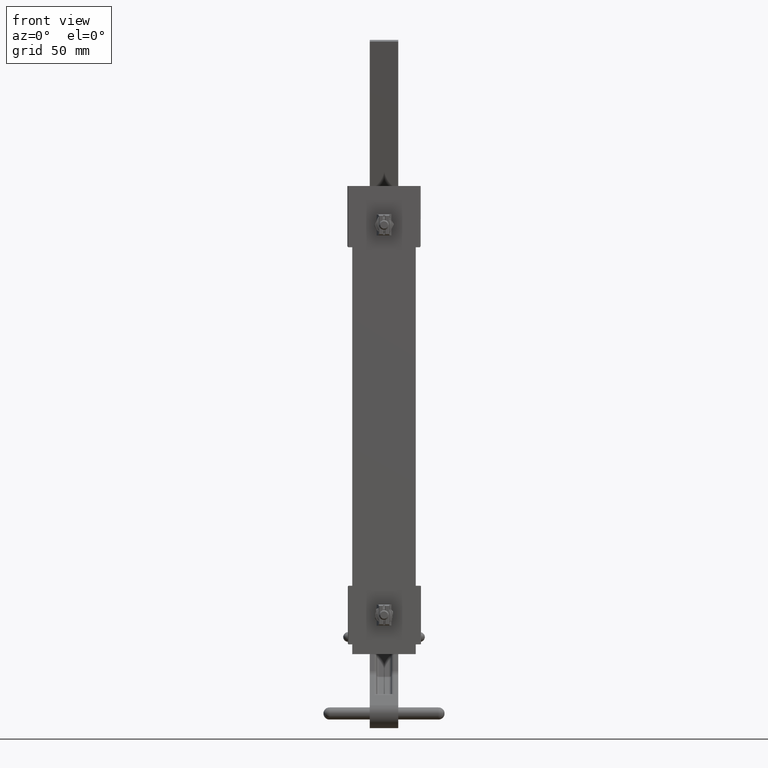
[diagram: clean part render]
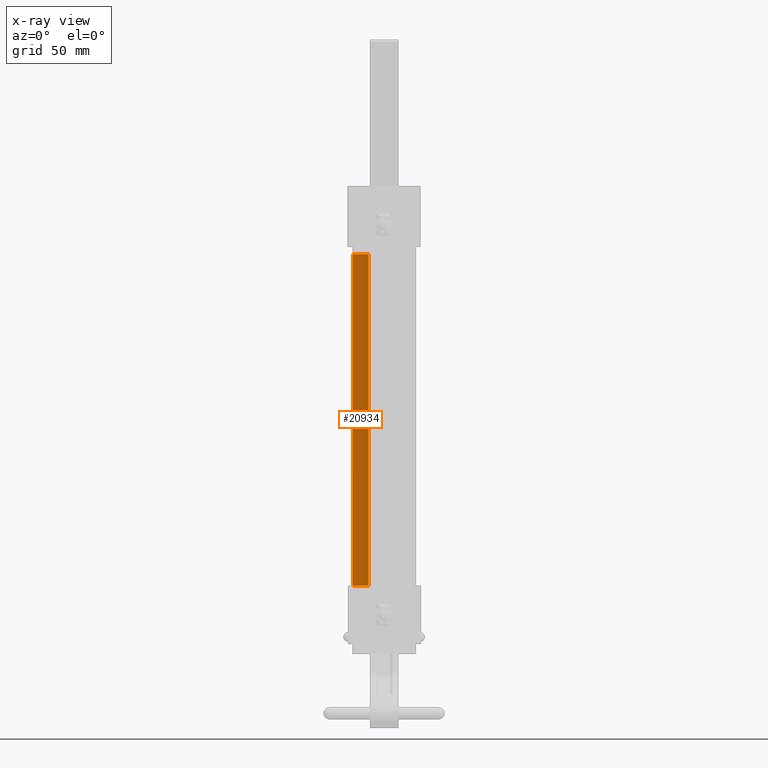
[diagram: x-ray — body ghosted, one internal face saturated and labeled with its STEP entity id]
A machine part, front view, then the same camera in x-ray: the body is ghosted and one INTERNAL B-rep face — a face not visible from any outside direction — is saturated and labeled: STEP entity #20934.
In plain terms, the highlighted planar face has unit normal (-0, -1, 0).
Its self-contained STEP definition (entity closure, byte-faithful):
#111 = EDGE_CURVE ( 'NONE', #20082, #3432, #18155, .T. ) ;
#798 = VECTOR ( 'NONE', #14236, 39.37007874015748100 ) ;
#2136 = LINE ( 'NONE', #5496, #37944 ) ;
#3432 = VERTEX_POINT ( 'NONE', #9697 ) ;
#5496 = CARTESIAN_POINT ( 'NONE',  ( -0.3940000000000000700, -0.1880000000000000800, 4.250000000000000000 ) ) ;
#7037 = AXIS2_PLACEMENT_3D ( 'NONE', #16523, #40768, #20037 ) ;
#7241 = CARTESIAN_POINT ( 'NONE',  ( -0.8000000000000000400, -0.1880000000000000600, 4.250000000000000000 ) ) ;
#8568 = ORIENTED_EDGE ( 'NONE', *, *, #28627, .T. ) ;
#9136 = DIRECTION ( 'NONE',  ( -0.0000000000000000000, -0.0000000000000000000, -1.000000000000000000 ) ) ;
#9535 = PLANE ( 'NONE',  #7037 ) ;
#9697 = CARTESIAN_POINT ( 'NONE',  ( -0.8000000000000000400, -0.1880000000000000600, -4.250000000000000000 ) ) ;
#10989 = CARTESIAN_POINT ( 'NONE',  ( -0.8000000000000000400, -0.1880000000000000600, 4.250000000000000000 ) ) ;
#11045 = VERTEX_POINT ( 'NONE', #28980 ) ;
#11272 = ORIENTED_EDGE ( 'NONE', *, *, #31563, .F. ) ;
#12323 = VECTOR ( 'NONE', #31183, 39.37007874015748100 ) ;
#14236 = DIRECTION ( 'NONE',  ( -0.0000000000000000000, -0.0000000000000000000, -1.000000000000000000 ) ) ;
#16523 = CARTESIAN_POINT ( 'NONE',  ( -0.8000000000000000400, -0.1880000000000000600, 4.250000000000000000 ) ) ;
#17146 = CARTESIAN_POINT ( 'NONE',  ( -0.3940000000000000700, -0.1880000000000000800, 4.250000000000000000 ) ) ;
#18155 = LINE ( 'NONE', #7241, #798 ) ;
#18851 = ORIENTED_EDGE ( 'NONE', *, *, #41314, .F. ) ;
#20037 = DIRECTION ( 'NONE',  ( 1.000000000000000000, -8.410862049458938700E-017, 0.0000000000000000000 ) ) ;
#20082 = VERTEX_POINT ( 'NONE', #43748 ) ;
#20934 = ADVANCED_FACE ( 'NONE', ( #44720 ), #9535, .T. ) ;
#28627 = EDGE_CURVE ( 'NONE', #37221, #20082, #39626, .T. ) ;
#28980 = CARTESIAN_POINT ( 'NONE',  ( -0.3940000000000000700, -0.1880000000000000800, -4.250000000000000000 ) ) ;
#30419 = VECTOR ( 'NONE', #34974, 39.37007874015748100 ) ;
#31183 = DIRECTION ( 'NONE',  ( -1.000000000000000000, 8.410862049458938700E-017, 0.0000000000000000000 ) ) ;
#31563 = EDGE_CURVE ( 'NONE', #11045, #3432, #40026, .T. ) ;
#34974 = DIRECTION ( 'NONE',  ( -1.000000000000000000, 8.410862049458938700E-017, 0.0000000000000000000 ) ) ;
#35228 = EDGE_LOOP ( 'NONE', ( #11272, #18851, #8568, #38868 ) ) ;
#37221 = VERTEX_POINT ( 'NONE', #17146 ) ;
#37944 = VECTOR ( 'NONE', #9136, 39.37007874015748100 ) ;
#38868 = ORIENTED_EDGE ( 'NONE', *, *, #111, .T. ) ;
#39626 = LINE ( 'NONE', #10989, #30419 ) ;
#40026 = LINE ( 'NONE', #41491, #12323 ) ;
#40768 = DIRECTION ( 'NONE',  ( -8.410862049458938700E-017, -1.000000000000000000, 0.0000000000000000000 ) ) ;
#41314 = EDGE_CURVE ( 'NONE', #37221, #11045, #2136, .T. ) ;
#41491 = CARTESIAN_POINT ( 'NONE',  ( -0.8000000000000000400, -0.1880000000000000600, -4.250000000000000000 ) ) ;
#43748 = CARTESIAN_POINT ( 'NONE',  ( -0.8000000000000000400, -0.1880000000000000600, 4.250000000000000000 ) ) ;
#44720 = FACE_OUTER_BOUND ( 'NONE', #35228, .T. ) ;